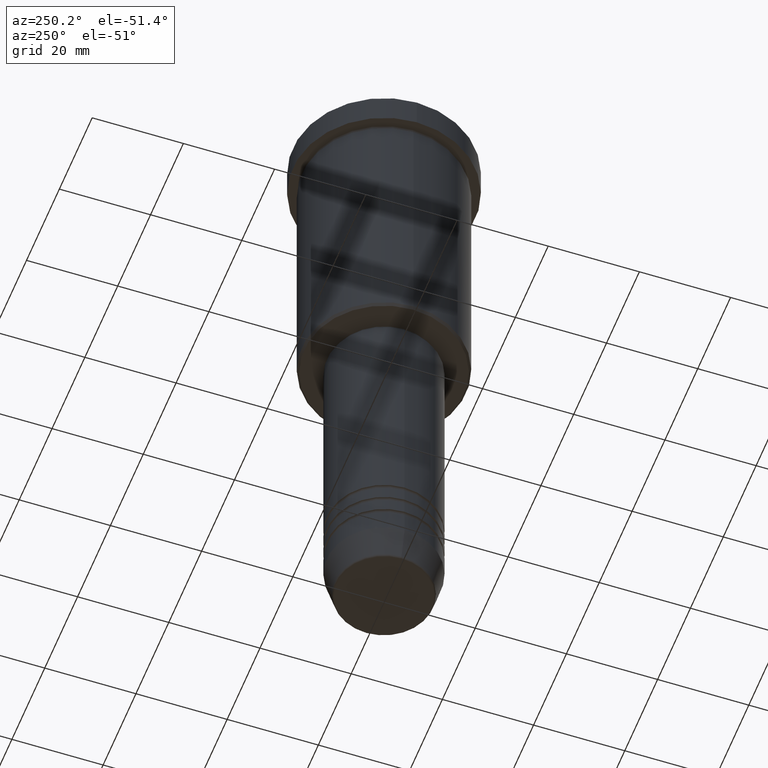
[diagram: clean part render]
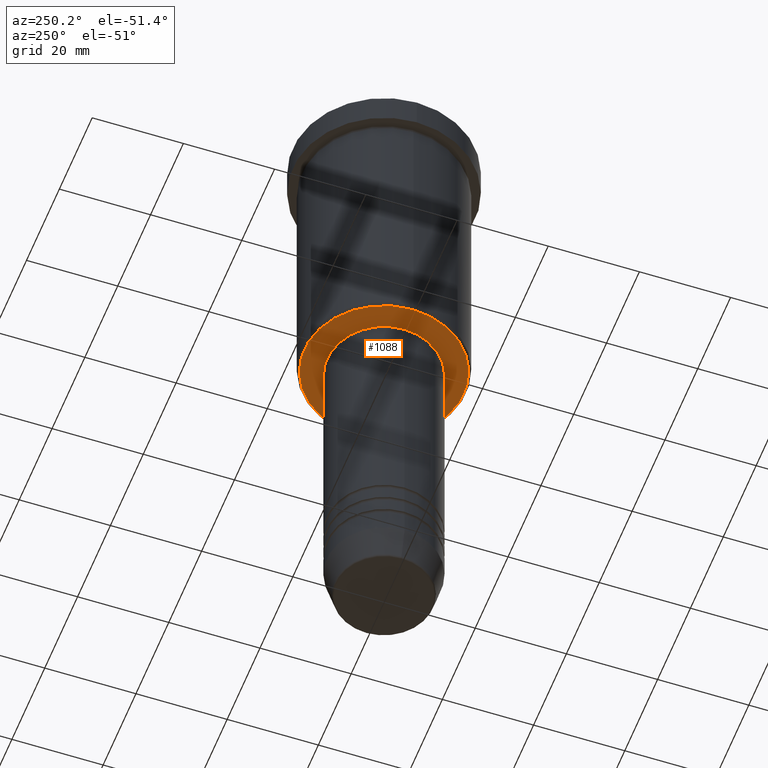
[diagram: same view with one face highlighted and labeled with its STEP entity id]
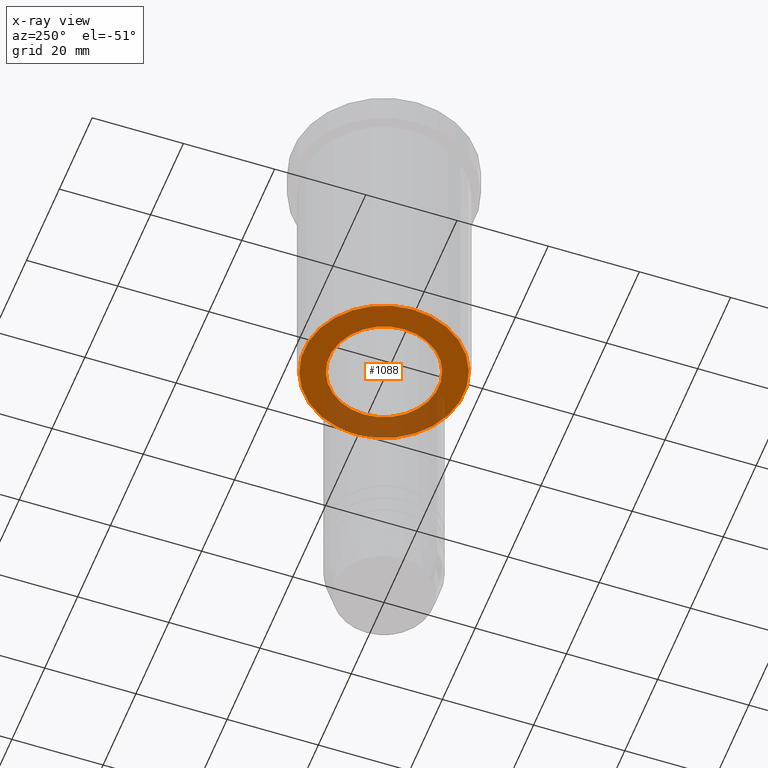
[diagram: x-ray of the same camera — body ghosted, the highlighted face saturated]
A machine part, auxiliary view. The second image highlights one B-rep face of the part: STEP entity #1088.
The next image is the same camera in x-ray: the body ghosted, the highlighted face saturated — about 31% of this face is hidden behind the body in this view.
In plain terms, the highlighted planar face has unit normal (0, 0, -1).
Its self-contained STEP definition (entity closure, byte-faithful):
#141 = DIRECTION ( 'NONE',  ( 0.000000000000000000, 0.000000000000000000, -1.000000000000000000 ) ) ;
#161 = EDGE_CURVE ( 'NONE', #573, #718, #637, .T. ) ;
#165 = AXIS2_PLACEMENT_3D ( 'NONE', #951, #348, #698 ) ;
#191 = CARTESIAN_POINT ( 'NONE',  ( 17.49999999999998934, 0.000000000000000000, -66.00000000000000000 ) ) ;
#201 = DIRECTION ( 'NONE',  ( 1.000000000000000000, 0.000000000000000000, 0.000000000000000000 ) ) ;
#202 = CIRCLE ( 'NONE', #165, 17.49999999999998934 ) ;
#245 = CARTESIAN_POINT ( 'NONE',  ( 12.00000000000000000, 0.000000000000000000, -66.00000000000000000 ) ) ;
#259 = CARTESIAN_POINT ( 'NONE',  ( 0.000000000000000000, 0.000000000000000000, -66.00000000000000000 ) ) ;
#298 = ORIENTED_EDGE ( 'NONE', *, *, #161, .T. ) ;
#303 = AXIS2_PLACEMENT_3D ( 'NONE', #259, #797, #424 ) ;
#328 = FACE_OUTER_BOUND ( 'NONE', #1106, .T. ) ;
#348 = DIRECTION ( 'NONE',  ( 0.000000000000000000, 0.000000000000000000, -1.000000000000000000 ) ) ;
#376 = CIRCLE ( 'NONE', #1036, 17.49999999999998934 ) ;
#380 = DIRECTION ( 'NONE',  ( -0.000000000000000000, -0.000000000000000000, 1.000000000000000000 ) ) ;
#424 = DIRECTION ( 'NONE',  ( 1.000000000000000000, 0.000000000000000000, 0.000000000000000000 ) ) ;
#437 = EDGE_CURVE ( 'NONE', #785, #875, #202, .T. ) ;
#439 = CARTESIAN_POINT ( 'NONE',  ( 0.000000000000000000, 0.000000000000000000, -66.00000000000000000 ) ) ;
#473 = ORIENTED_EDGE ( 'NONE', *, *, #437, .T. ) ;
#500 = PLANE ( 'NONE',  #778 ) ;
#504 = EDGE_CURVE ( 'NONE', #875, #785, #376, .T. ) ;
#510 = EDGE_CURVE ( 'NONE', #718, #573, #940, .T. ) ;
#573 = VERTEX_POINT ( 'NONE', #664 ) ;
#605 = DIRECTION ( 'NONE',  ( -1.000000000000000000, 0.000000000000000000, 0.000000000000000000 ) ) ;
#615 = ORIENTED_EDGE ( 'NONE', *, *, #504, .T. ) ;
#637 = CIRCLE ( 'NONE', #1109, 12.00000000000000000 ) ;
#664 = CARTESIAN_POINT ( 'NONE',  ( -12.00000000000000000, 1.469576158976823947E-15, -66.00000000000000000 ) ) ;
#684 = DIRECTION ( 'NONE',  ( -1.000000000000000000, 0.000000000000000000, -0.000000000000000000 ) ) ;
#698 = DIRECTION ( 'NONE',  ( -1.000000000000000000, 0.000000000000000000, 0.000000000000000000 ) ) ;
#718 = VERTEX_POINT ( 'NONE', #245 ) ;
#778 = AXIS2_PLACEMENT_3D ( 'NONE', #862, #141, #684 ) ;
#785 = VERTEX_POINT ( 'NONE', #191 ) ;
#797 = DIRECTION ( 'NONE',  ( -0.000000000000000000, -0.000000000000000000, 1.000000000000000000 ) ) ;
#804 = DIRECTION ( 'NONE',  ( 0.000000000000000000, 0.000000000000000000, -1.000000000000000000 ) ) ;
#843 = CARTESIAN_POINT ( 'NONE',  ( 0.000000000000000000, 0.000000000000000000, -66.00000000000000000 ) ) ;
#862 = CARTESIAN_POINT ( 'NONE',  ( 0.000000000000000000, 18.00000000000000000, -66.00000000000000000 ) ) ;
#875 = VERTEX_POINT ( 'NONE', #1067 ) ;
#940 = CIRCLE ( 'NONE', #303, 12.00000000000000000 ) ;
#949 = FACE_BOUND ( 'NONE', #1033, .T. ) ;
#951 = CARTESIAN_POINT ( 'NONE',  ( 0.000000000000000000, 0.000000000000000000, -66.00000000000000000 ) ) ;
#1033 = EDGE_LOOP ( 'NONE', ( #1151, #298 ) ) ;
#1036 = AXIS2_PLACEMENT_3D ( 'NONE', #439, #804, #605 ) ;
#1067 = CARTESIAN_POINT ( 'NONE',  ( -17.49999999999998934, 2.173748068486550852E-15, -66.00000000000000000 ) ) ;
#1088 = ADVANCED_FACE ( 'NONE', ( #328, #949 ), #500, .T. ) ;
#1106 = EDGE_LOOP ( 'NONE', ( #473, #615 ) ) ;
#1109 = AXIS2_PLACEMENT_3D ( 'NONE', #843, #380, #201 ) ;
#1151 = ORIENTED_EDGE ( 'NONE', *, *, #510, .T. ) ;